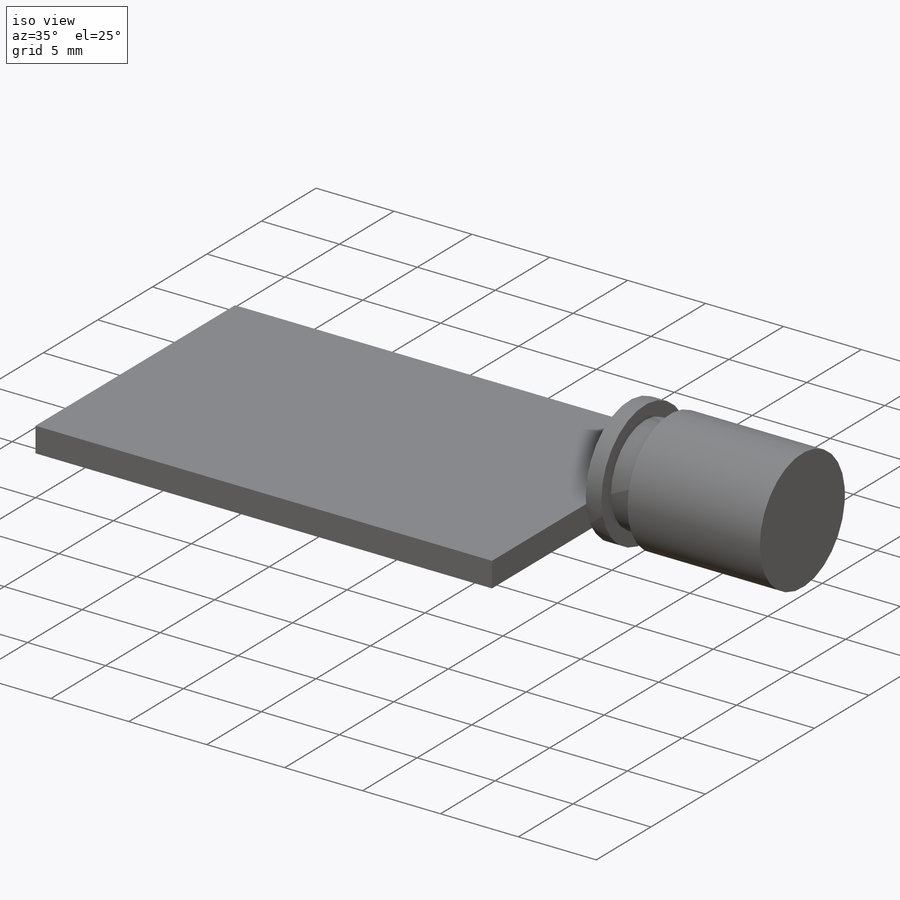
[diagram: iso view]
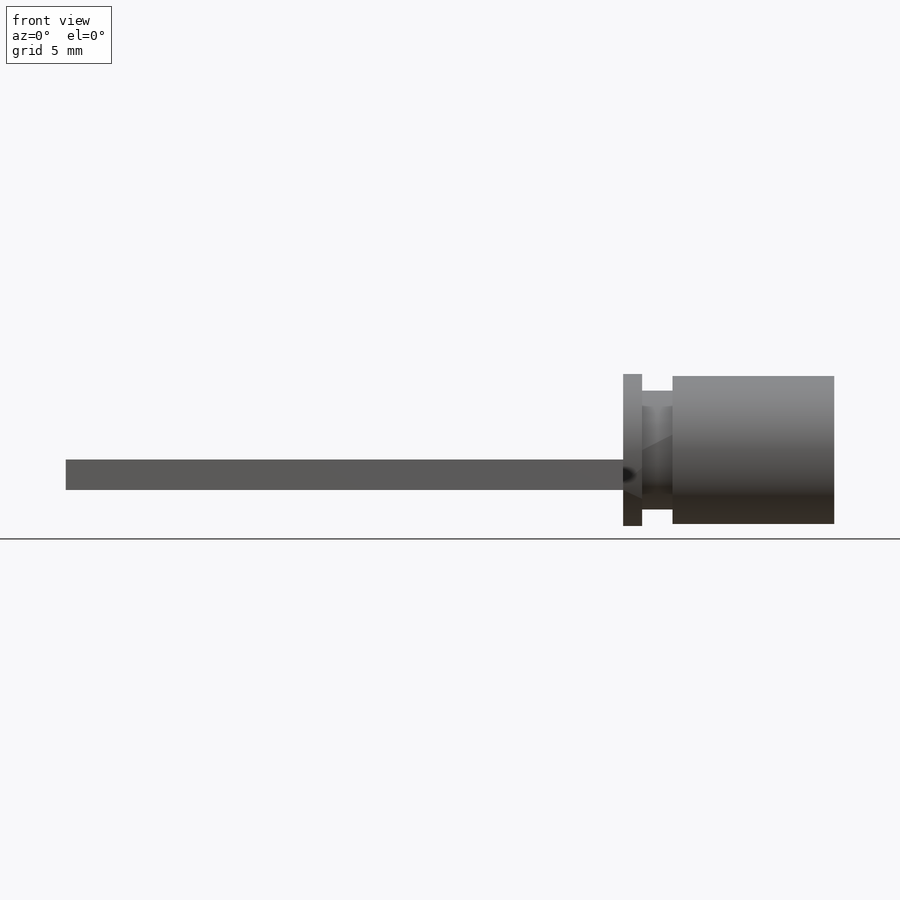
[diagram: front view]
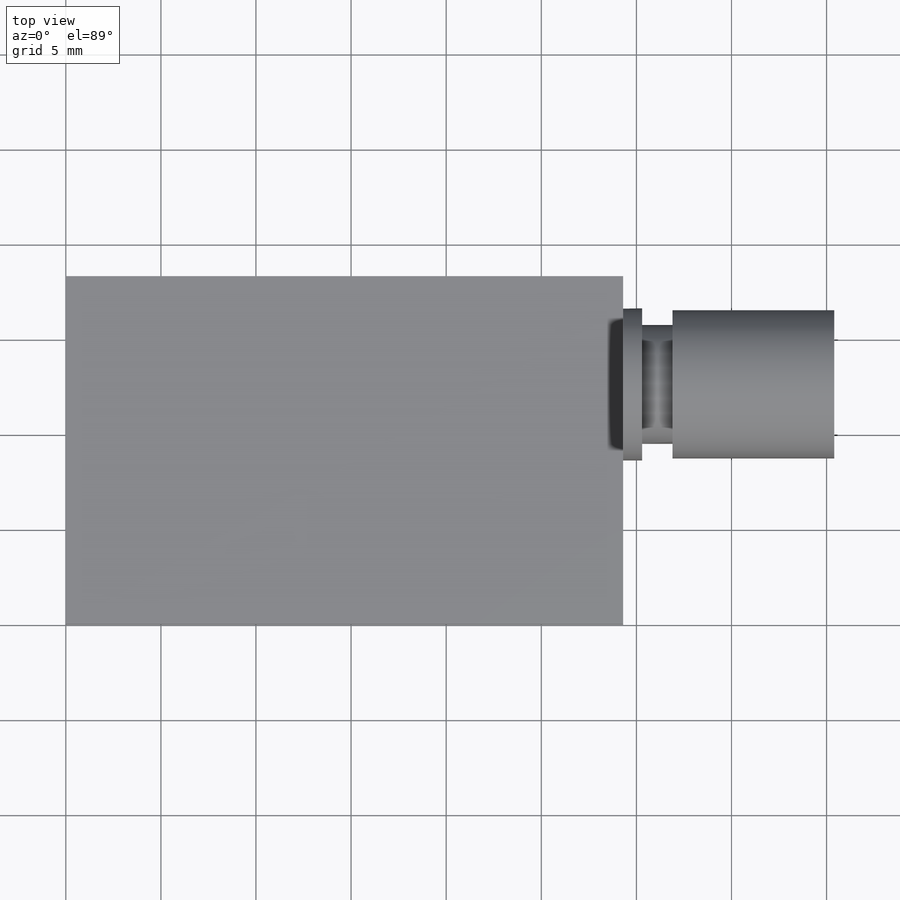
[diagram: top view]
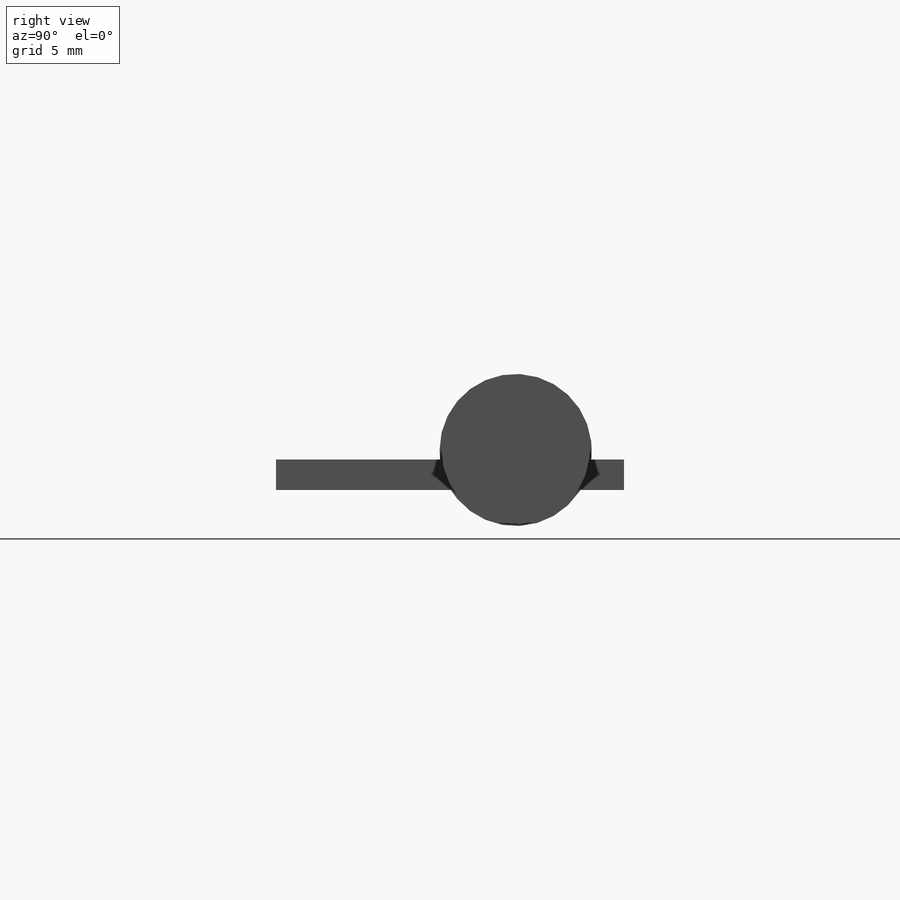
[diagram: right view]
SOLIDWORKS PART (.sldprt)
format: sldprt  version: not decoded by parser v0  size: 411,136 bytes
history: native  units: mm
features: sketch x4, extrude x4, material x1 (+11 scaffold rows collapsed)
feature tree (20):
  scaffold x11  (default folders/planes/origin — collapsed)
  material  "Material <not specified>"
  sketch  "Sketch2"  dims[D1=29.3mm D2=18.3mm]
  extrude  "Boss-Extrude1"  Depth=1.6mm
  sketch  "Sketch3"  dims[c1.D2=8.0mm c1.D3=8.0mm c1.D1=0.8mm c2.D3=5.7mm c2.D1=0.5mm]
  extrude  "Boss-Extrude2"  Depth=1mm
  sketch  "Sketch4"  dims[D1=6.25mm]
  extrude  "Boss-Extrude3"  Depth=1.6mm
  sketch  "Sketch5"  dims[D1=7.8mm]
  extrude  "Boss-Extrude4"  Depth=8.5mm
decode coverage: 8 of 8 modeling features carry decoded parameters
note: suppression state not decoded; provenance and decode notes live in map.json
